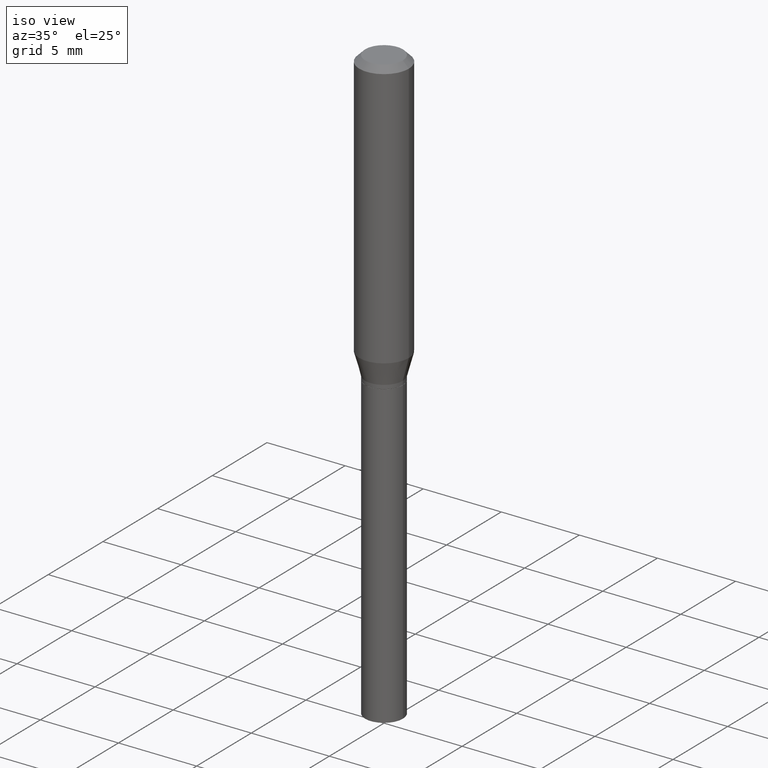
[diagram: clean part render]
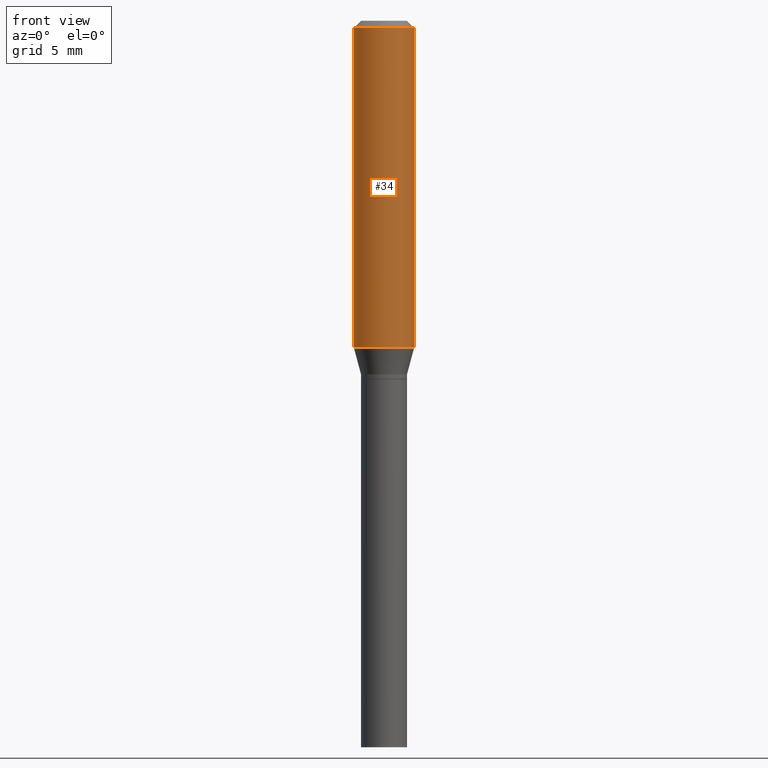
[diagram: tour spotlight — one face highlighted and labeled with its STEP entity id]
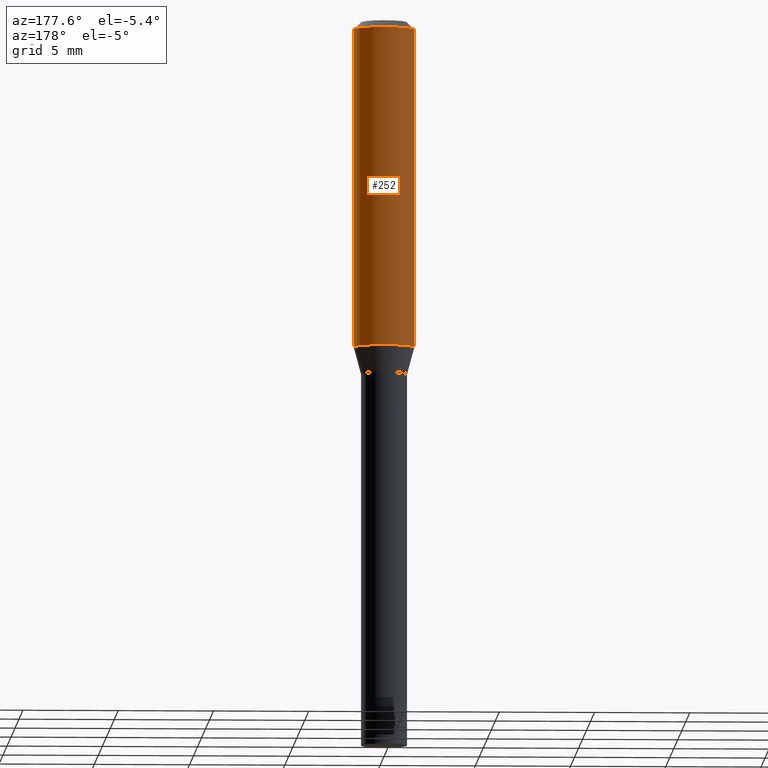
[diagram: tour spotlight — one face highlighted and labeled with its STEP entity id]
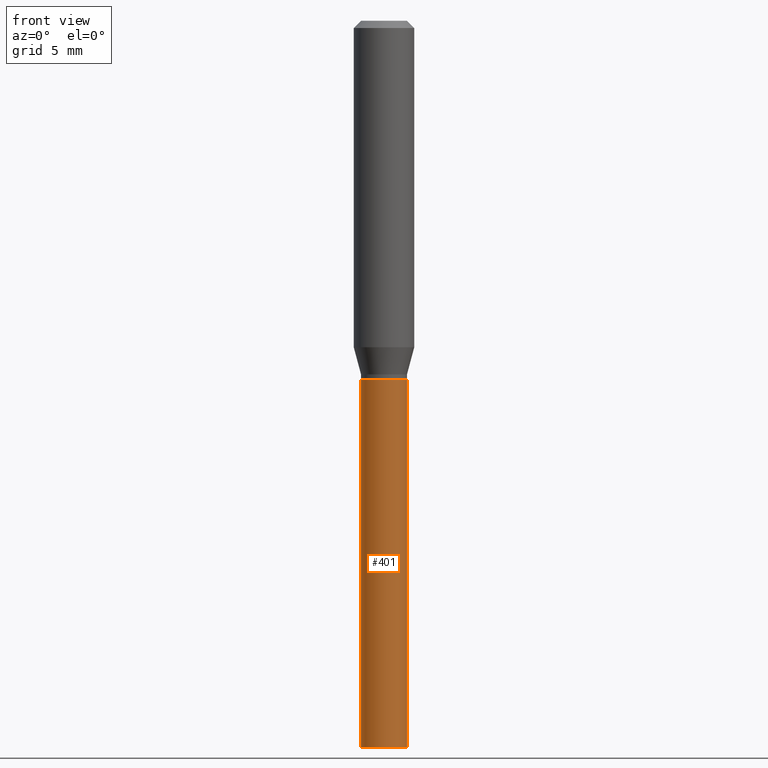
[diagram: tour spotlight — one face highlighted and labeled with its STEP entity id]
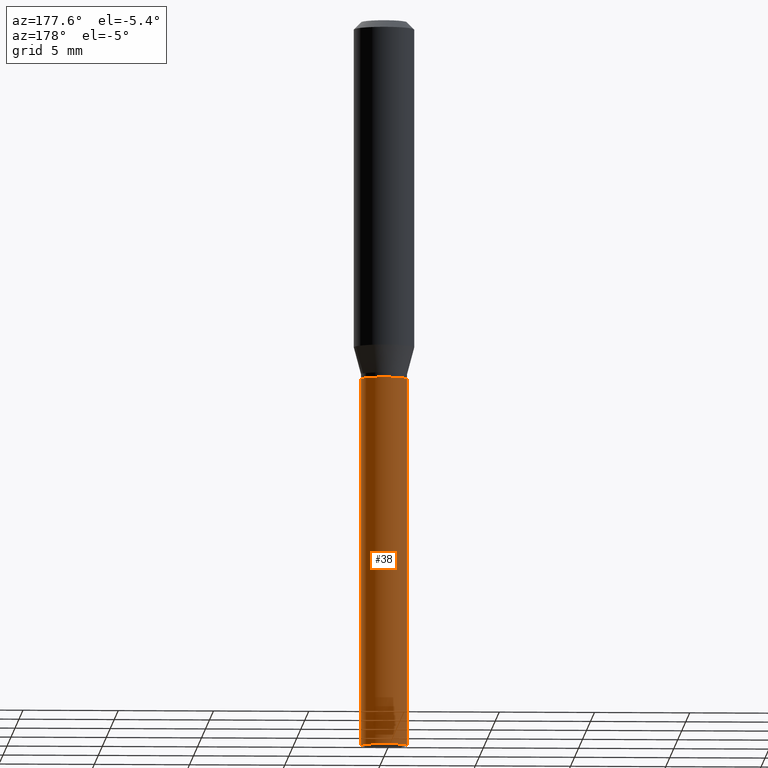
[diagram: tour spotlight — one face highlighted and labeled with its STEP entity id]
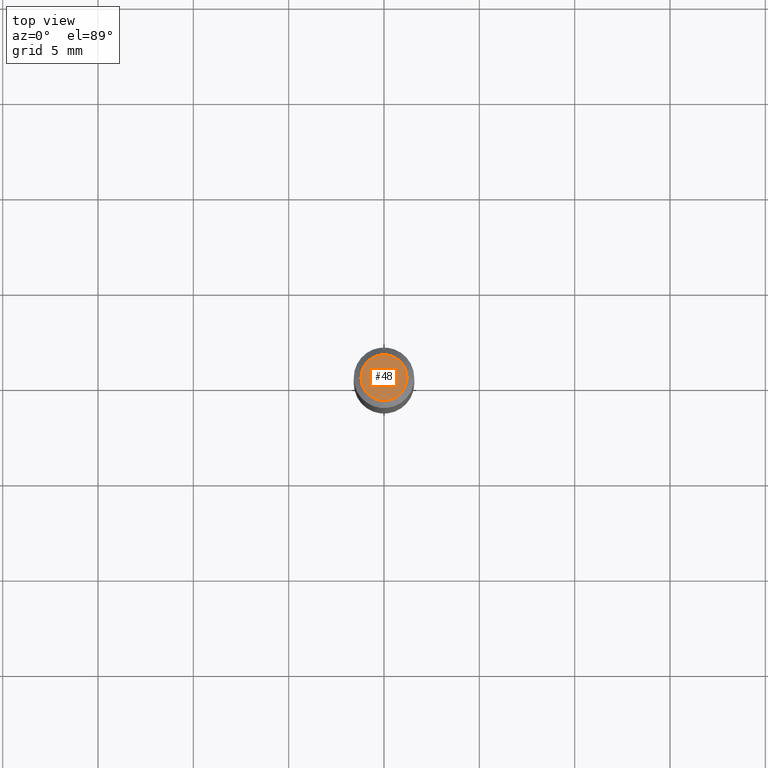
[diagram: tour spotlight — one face highlighted and labeled with its STEP entity id]
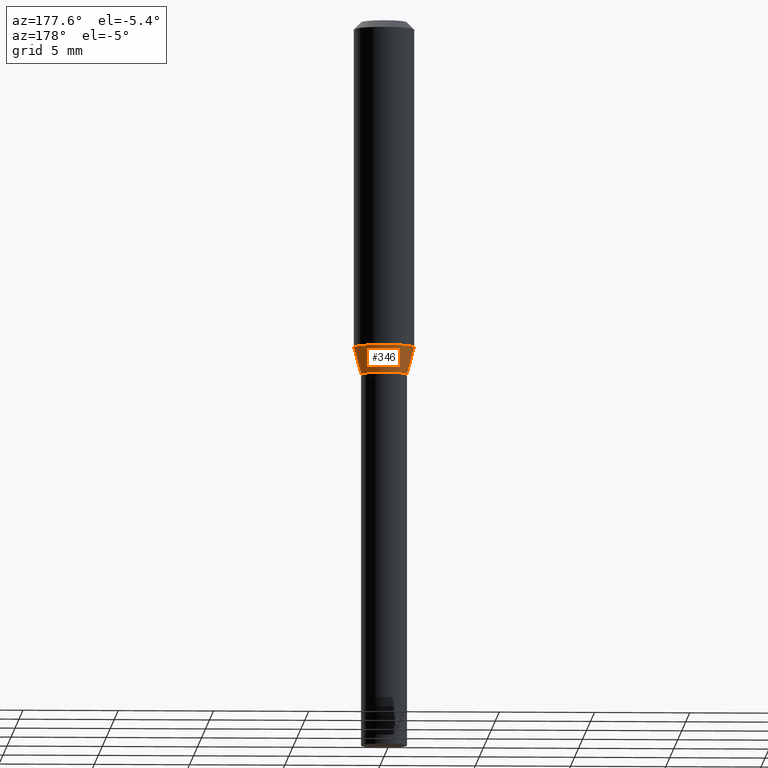
[diagram: tour spotlight — one face highlighted and labeled with its STEP entity id]
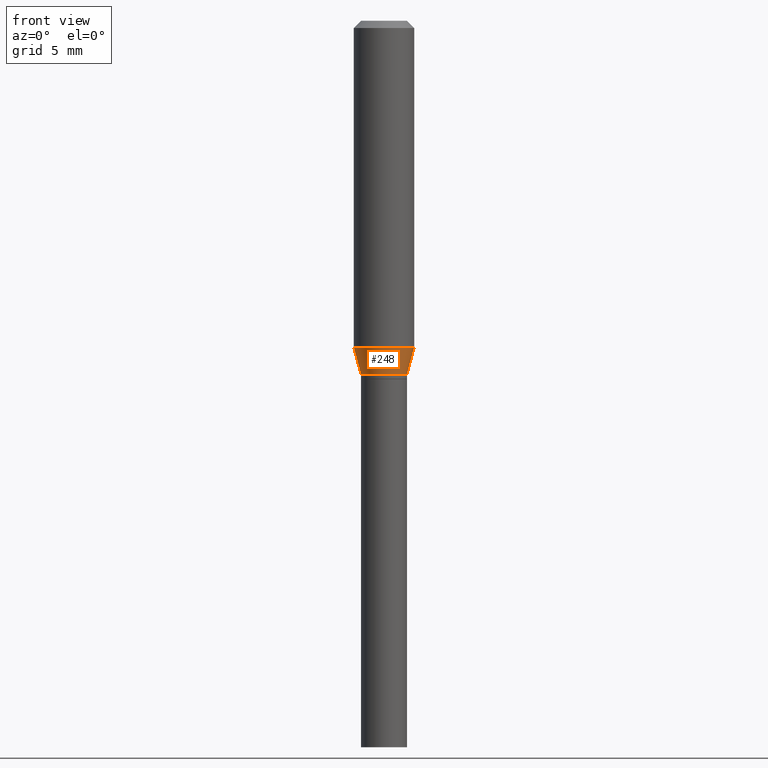
[diagram: tour spotlight — one face highlighted and labeled with its STEP entity id]
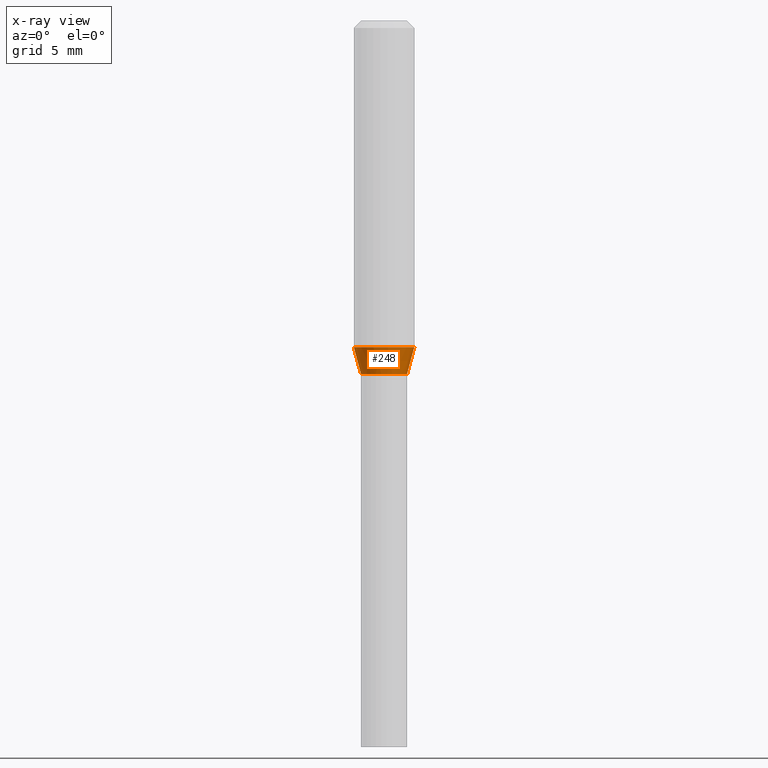
[diagram: x-ray of the same camera — body ghosted, this tour face saturated]
A machine part: a face-by-face anatomy tour. The part has 16 B-rep faces; the first image is the clean iso view, then the 7 largest visible faces are spotlighted one at a time (largest first), each with its STEP entity span.

Face 1 — front view, entity #34. In plain terms, the highlighted cylindrical surface (edge-blend (fillet) strip) has radius 1.5875 mm, axis along (-0, 0, 1).
Definition (entity closure, byte-faithful):
#7 = VECTOR ( 'NONE', #396, 39.37007874015748143 ) ;
#15 = EDGE_CURVE ( 'NONE', #301, #352, #243, .T. ) ;
#20 = VERTEX_POINT ( 'NONE', #185 ) ;
#34 = ADVANCED_FACE ( 'NONE', ( #110 ), #300, .T. ) ;
#81 = CIRCLE ( 'NONE', #386, 0.06250000000000000000 ) ;
#96 = VERTEX_POINT ( 'NONE', #203 ) ;
#97 = VECTOR ( 'NONE', #256, 39.37007874015748143 ) ;
#103 = CARTESIAN_POINT ( 'NONE',  ( -0.06250000000000000000, -1.909236381251816647E-15, -0.6740192378864672262 ) ) ;
#108 = DIRECTION ( 'NONE',  ( 1.000000000000000000, -6.982962677686270655E-15, 0.000000000000000000 ) ) ;
#110 = FACE_OUTER_BOUND ( 'NONE', #409, .T. ) ;
#116 = AXIS2_PLACEMENT_3D ( 'NONE', #392, #433, #439 ) ;
#126 = ORIENTED_EDGE ( 'NONE', *, *, #438, .T. ) ;
#134 = CARTESIAN_POINT ( 'NONE',  ( -0.06250000000000000000, -7.587596957422007521E-16, -0.01499999999999999944 ) ) ;
#148 = AXIS2_PLACEMENT_3D ( 'NONE', #285, #345, #108 ) ;
#185 = CARTESIAN_POINT ( 'NONE',  ( 0.06250000000000000000, -2.789760758457271721E-15, -0.6740192378864672262 ) ) ;
#186 = CARTESIAN_POINT ( 'NONE',  ( 3.668203209277705088E-31, -5.237222008264718399E-17, -0.01499999999999999944 ) ) ;
#188 = DIRECTION ( 'NONE',  ( 1.000000000000000000, -6.982962677686266711E-15, 0.000000000000000000 ) ) ;
#203 = CARTESIAN_POINT ( 'NONE',  ( 0.06250000000000000000, -4.888073874380388472E-16, -0.01499999999999999944 ) ) ;
#220 = LINE ( 'NONE', #356, #97 ) ;
#243 = LINE ( 'NONE', #430, #7 ) ;
#256 = DIRECTION ( 'NONE',  ( -2.445468806185136877E-29, 3.491481338843145188E-15, 1.000000000000000000 ) ) ;
#285 = CARTESIAN_POINT ( 'NONE',  ( 1.648293021020034731E-29, -2.353325591101879657E-15, -0.6740192378864672262 ) ) ;
#297 = DIRECTION ( 'NONE',  ( -2.445468806185136597E-29, 3.491481338843145583E-15, 1.000000000000000000 ) ) ;
#300 = CYLINDRICAL_SURFACE ( 'NONE', #116, 0.06250000000000000000 ) ;
#301 = VERTEX_POINT ( 'NONE', #103 ) ;
#331 = EDGE_CURVE ( 'NONE', #301, #20, #348, .T. ) ;
#345 = DIRECTION ( 'NONE',  ( -2.445468806185136597E-29, 3.491481338843145583E-15, 1.000000000000000000 ) ) ;
#348 = CIRCLE ( 'NONE', #148, 0.06250000000000000000 ) ;
#352 = VERTEX_POINT ( 'NONE', #134 ) ;
#353 = ORIENTED_EDGE ( 'NONE', *, *, #331, .T. ) ;
#356 = CARTESIAN_POINT ( 'NONE',  ( 0.06250000000000000000, -4.364351673553916694E-16, 3.047610484872459871E-30 ) ) ;
#372 = ORIENTED_EDGE ( 'NONE', *, *, #423, .F. ) ;
#386 = AXIS2_PLACEMENT_3D ( 'NONE', #186, #297, #188 ) ;
#392 = CARTESIAN_POINT ( 'NONE',  ( 0.000000000000000000, 0.000000000000000000, 0.000000000000000000 ) ) ;
#396 = DIRECTION ( 'NONE',  ( -2.445468806185136877E-29, 3.491481338843145188E-15, 1.000000000000000000 ) ) ;
#409 = EDGE_LOOP ( 'NONE', ( #421, #353, #126, #372 ) ) ;
#421 = ORIENTED_EDGE ( 'NONE', *, *, #15, .F. ) ;
#423 = EDGE_CURVE ( 'NONE', #352, #96, #81, .T. ) ;
#430 = CARTESIAN_POINT ( 'NONE',  ( -0.06250000000000000000, 4.440892098500626162E-16, -3.074334431409316114E-30 ) ) ;
#433 = DIRECTION ( 'NONE',  ( -2.445468806185136597E-29, 3.491481338843145583E-15, 1.000000000000000000 ) ) ;
#438 = EDGE_CURVE ( 'NONE', #20, #96, #220, .T. ) ;
#439 = DIRECTION ( 'NONE',  ( 1.000000000000000000, -6.982962677686266711E-15, 4.876176775795935793E-29 ) ) ;

Face 2 — auxiliary view, entity #252. In plain terms, the highlighted cylindrical surface (edge-blend (fillet) strip) has radius 1.5875 mm, axis along (-0, 0, 1).
Definition (entity closure, byte-faithful):
#7 = VECTOR ( 'NONE', #396, 39.37007874015748143 ) ;
#12 = DIRECTION ( 'NONE',  ( -2.445468806185136597E-29, 3.491481338843145583E-15, 1.000000000000000000 ) ) ;
#15 = EDGE_CURVE ( 'NONE', #301, #352, #243, .T. ) ;
#17 = ORIENTED_EDGE ( 'NONE', *, *, #411, .T. ) ;
#20 = VERTEX_POINT ( 'NONE', #185 ) ;
#61 = CARTESIAN_POINT ( 'NONE',  ( 3.668203209277705088E-31, -5.237222008264718399E-17, -0.01499999999999999944 ) ) ;
#66 = CYLINDRICAL_SURFACE ( 'NONE', #318, 0.06250000000000000000 ) ;
#93 = EDGE_CURVE ( 'NONE', #96, #352, #295, .T. ) ;
#96 = VERTEX_POINT ( 'NONE', #203 ) ;
#97 = VECTOR ( 'NONE', #256, 39.37007874015748143 ) ;
#103 = CARTESIAN_POINT ( 'NONE',  ( -0.06250000000000000000, -1.909236381251816647E-15, -0.6740192378864672262 ) ) ;
#115 = AXIS2_PLACEMENT_3D ( 'NONE', #216, #144, #391 ) ;
#134 = CARTESIAN_POINT ( 'NONE',  ( -0.06250000000000000000, -7.587596957422007521E-16, -0.01499999999999999944 ) ) ;
#142 = DIRECTION ( 'NONE',  ( -2.445468806185136597E-29, 3.491481338843145583E-15, 1.000000000000000000 ) ) ;
#144 = DIRECTION ( 'NONE',  ( -2.445468806185136597E-29, 3.491481338843145583E-15, 1.000000000000000000 ) ) ;
#175 = ORIENTED_EDGE ( 'NONE', *, *, #438, .F. ) ;
#179 = FACE_OUTER_BOUND ( 'NONE', #239, .T. ) ;
#185 = CARTESIAN_POINT ( 'NONE',  ( 0.06250000000000000000, -2.789760758457271721E-15, -0.6740192378864672262 ) ) ;
#203 = CARTESIAN_POINT ( 'NONE',  ( 0.06250000000000000000, -4.888073874380388472E-16, -0.01499999999999999944 ) ) ;
#209 = CARTESIAN_POINT ( 'NONE',  ( 0.000000000000000000, 0.000000000000000000, 0.000000000000000000 ) ) ;
#216 = CARTESIAN_POINT ( 'NONE',  ( 1.648293021020034731E-29, -2.353325591101879657E-15, -0.6740192378864672262 ) ) ;
#220 = LINE ( 'NONE', #356, #97 ) ;
#227 = ORIENTED_EDGE ( 'NONE', *, *, #15, .T. ) ;
#239 = EDGE_LOOP ( 'NONE', ( #17, #227, #245, #175 ) ) ;
#243 = LINE ( 'NONE', #430, #7 ) ;
#245 = ORIENTED_EDGE ( 'NONE', *, *, #93, .F. ) ;
#252 = ADVANCED_FACE ( 'NONE', ( #179 ), #66, .T. ) ;
#256 = DIRECTION ( 'NONE',  ( -2.445468806185136877E-29, 3.491481338843145188E-15, 1.000000000000000000 ) ) ;
#295 = CIRCLE ( 'NONE', #460, 0.06250000000000000000 ) ;
#301 = VERTEX_POINT ( 'NONE', #103 ) ;
#302 = DIRECTION ( 'NONE',  ( 1.000000000000000000, -6.982962677686266711E-15, 0.000000000000000000 ) ) ;
#318 = AXIS2_PLACEMENT_3D ( 'NONE', #209, #142, #381 ) ;
#352 = VERTEX_POINT ( 'NONE', #134 ) ;
#356 = CARTESIAN_POINT ( 'NONE',  ( 0.06250000000000000000, -4.364351673553916694E-16, 3.047610484872459871E-30 ) ) ;
#379 = CIRCLE ( 'NONE', #115, 0.06250000000000000000 ) ;
#381 = DIRECTION ( 'NONE',  ( 1.000000000000000000, -6.982962677686266711E-15, 4.876176775795935793E-29 ) ) ;
#391 = DIRECTION ( 'NONE',  ( 1.000000000000000000, -6.982962677686270655E-15, 0.000000000000000000 ) ) ;
#396 = DIRECTION ( 'NONE',  ( -2.445468806185136877E-29, 3.491481338843145188E-15, 1.000000000000000000 ) ) ;
#411 = EDGE_CURVE ( 'NONE', #20, #301, #379, .T. ) ;
#430 = CARTESIAN_POINT ( 'NONE',  ( -0.06250000000000000000, 4.440892098500626162E-16, -3.074334431409316114E-30 ) ) ;
#438 = EDGE_CURVE ( 'NONE', #20, #96, #220, .T. ) ;
#460 = AXIS2_PLACEMENT_3D ( 'NONE', #61, #12, #302 ) ;

Face 3 — front view, entity #401. In plain terms, the highlighted cylindrical surface (edge-blend (fillet) strip) has radius 1.2065 mm, axis along (-0, 0, 1).
Definition (entity closure, byte-faithful):
#3 = DIRECTION ( 'NONE',  ( 1.000000000000000000, -6.982962677686267499E-15, 4.876176775795935793E-29 ) ) ;
#63 = VERTEX_POINT ( 'NONE', #408 ) ;
#64 = CARTESIAN_POINT ( 'NONE',  ( 0.04749999999999999362, -3.316907271900976589E-16, 2.316183968503069081E-30 ) ) ;
#71 = CARTESIAN_POINT ( 'NONE',  ( 0.04749999999999999362, -2.915386917934026134E-15, -0.7400000000000002132 ) ) ;
#77 = CIRCLE ( 'NONE', #432, 0.04749999999999999362 ) ;
#78 = CARTESIAN_POINT ( 'NONE',  ( 3.668203209277704895E-29, -5.237222008264718177E-15, -1.500000000000000222 ) ) ;
#106 = CARTESIAN_POINT ( 'NONE',  ( -0.04749999999999999362, -3.572951300018275906E-15, -0.7400000000000002132 ) ) ;
#109 = FACE_OUTER_BOUND ( 'NONE', #234, .T. ) ;
#119 = EDGE_CURVE ( 'NONE', #63, #344, #265, .T. ) ;
#124 = ORIENTED_EDGE ( 'NONE', *, *, #166, .T. ) ;
#131 = CARTESIAN_POINT ( 'NONE',  ( -0.04749999999999999362, 3.375077994860475429E-16, -2.336494167871079910E-30 ) ) ;
#145 = CARTESIAN_POINT ( 'NONE',  ( 0.04749999999999999362, -5.568912735454815688E-15, -1.500000000000000222 ) ) ;
#147 = DIRECTION ( 'NONE',  ( -2.445468806185136597E-29, 3.491481338843145583E-15, 1.000000000000000000 ) ) ;
#166 = EDGE_CURVE ( 'NONE', #337, #275, #217, .T. ) ;
#177 = DIRECTION ( 'NONE',  ( 1.000000000000000000, -6.982962677686273021E-15, 0.000000000000000000 ) ) ;
#178 = ORIENTED_EDGE ( 'NONE', *, *, #119, .F. ) ;
#180 = CARTESIAN_POINT ( 'NONE',  ( 0.000000000000000000, 0.000000000000000000, 0.000000000000000000 ) ) ;
#184 = DIRECTION ( 'NONE',  ( -2.445468806185136597E-29, 3.491481338843145583E-15, 1.000000000000000000 ) ) ;
#217 = LINE ( 'NONE', #64, #349 ) ;
#224 = DIRECTION ( 'NONE',  ( 1.000000000000000000, -6.982962677686261977E-15, 0.000000000000000000 ) ) ;
#226 = AXIS2_PLACEMENT_3D ( 'NONE', #78, #147, #224 ) ;
#234 = EDGE_LOOP ( 'NONE', ( #178, #406, #124, #416 ) ) ;
#244 = CARTESIAN_POINT ( 'NONE',  ( 1.809646916577001463E-29, -2.583696190743928228E-15, -0.7400000000000002132 ) ) ;
#259 = CYLINDRICAL_SURFACE ( 'NONE', #299, 0.04749999999999999362 ) ;
#265 = LINE ( 'NONE', #131, #266 ) ;
#266 = VECTOR ( 'NONE', #304, 39.37007874015748143 ) ;
#275 = VERTEX_POINT ( 'NONE', #71 ) ;
#278 = CIRCLE ( 'NONE', #226, 0.04749999999999999362 ) ;
#299 = AXIS2_PLACEMENT_3D ( 'NONE', #180, #184, #3 ) ;
#304 = DIRECTION ( 'NONE',  ( -2.445468806185136877E-29, 3.491481338843145188E-15, 1.000000000000000000 ) ) ;
#317 = DIRECTION ( 'NONE',  ( -2.445468806185136597E-29, 3.491481338843145583E-15, 1.000000000000000000 ) ) ;
#321 = EDGE_CURVE ( 'NONE', #344, #275, #77, .T. ) ;
#337 = VERTEX_POINT ( 'NONE', #145 ) ;
#344 = VERTEX_POINT ( 'NONE', #106 ) ;
#349 = VECTOR ( 'NONE', #461, 39.37007874015748143 ) ;
#401 = ADVANCED_FACE ( 'NONE', ( #109 ), #259, .T. ) ;
#403 = EDGE_CURVE ( 'NONE', #63, #337, #278, .T. ) ;
#406 = ORIENTED_EDGE ( 'NONE', *, *, #403, .T. ) ;
#408 = CARTESIAN_POINT ( 'NONE',  ( -0.04749999999999999362, -3.572951300018275906E-15, -1.500000000000000222 ) ) ;
#416 = ORIENTED_EDGE ( 'NONE', *, *, #321, .F. ) ;
#432 = AXIS2_PLACEMENT_3D ( 'NONE', #244, #317, #177 ) ;
#461 = DIRECTION ( 'NONE',  ( -2.445468806185136877E-29, 3.491481338843145188E-15, 1.000000000000000000 ) ) ;

Face 4 — auxiliary view, entity #38. In plain terms, the highlighted cylindrical surface (edge-blend (fillet) strip) has radius 1.2065 mm, axis along (-0, 0, 1).
Definition (entity closure, byte-faithful):
#22 = EDGE_CURVE ( 'NONE', #337, #63, #40, .T. ) ;
#38 = ADVANCED_FACE ( 'NONE', ( #404 ), #47, .T. ) ;
#40 = CIRCLE ( 'NONE', #104, 0.04749999999999999362 ) ;
#47 = CYLINDRICAL_SURFACE ( 'NONE', #211, 0.04749999999999999362 ) ;
#55 = EDGE_LOOP ( 'NONE', ( #269, #453, #107, #57 ) ) ;
#57 = ORIENTED_EDGE ( 'NONE', *, *, #166, .F. ) ;
#63 = VERTEX_POINT ( 'NONE', #408 ) ;
#64 = CARTESIAN_POINT ( 'NONE',  ( 0.04749999999999999362, -3.316907271900976589E-16, 2.316183968503069081E-30 ) ) ;
#71 = CARTESIAN_POINT ( 'NONE',  ( 0.04749999999999999362, -2.915386917934026134E-15, -0.7400000000000002132 ) ) ;
#104 = AXIS2_PLACEMENT_3D ( 'NONE', #287, #427, #291 ) ;
#106 = CARTESIAN_POINT ( 'NONE',  ( -0.04749999999999999362, -3.572951300018275906E-15, -0.7400000000000002132 ) ) ;
#107 = ORIENTED_EDGE ( 'NONE', *, *, #357, .F. ) ;
#117 = CARTESIAN_POINT ( 'NONE',  ( 0.000000000000000000, 0.000000000000000000, 0.000000000000000000 ) ) ;
#119 = EDGE_CURVE ( 'NONE', #63, #344, #265, .T. ) ;
#122 = DIRECTION ( 'NONE',  ( 1.000000000000000000, -6.982962677686267499E-15, 4.876176775795935793E-29 ) ) ;
#131 = CARTESIAN_POINT ( 'NONE',  ( -0.04749999999999999362, 3.375077994860475429E-16, -2.336494167871079910E-30 ) ) ;
#145 = CARTESIAN_POINT ( 'NONE',  ( 0.04749999999999999362, -5.568912735454815688E-15, -1.500000000000000222 ) ) ;
#165 = DIRECTION ( 'NONE',  ( -2.445468806185136597E-29, 3.491481338843145583E-15, 1.000000000000000000 ) ) ;
#166 = EDGE_CURVE ( 'NONE', #337, #275, #217, .T. ) ;
#174 = CARTESIAN_POINT ( 'NONE',  ( 1.809646916577001463E-29, -2.583696190743928228E-15, -0.7400000000000002132 ) ) ;
#190 = AXIS2_PLACEMENT_3D ( 'NONE', #174, #165, #311 ) ;
#211 = AXIS2_PLACEMENT_3D ( 'NONE', #117, #360, #122 ) ;
#217 = LINE ( 'NONE', #64, #349 ) ;
#265 = LINE ( 'NONE', #131, #266 ) ;
#266 = VECTOR ( 'NONE', #304, 39.37007874015748143 ) ;
#269 = ORIENTED_EDGE ( 'NONE', *, *, #22, .T. ) ;
#275 = VERTEX_POINT ( 'NONE', #71 ) ;
#287 = CARTESIAN_POINT ( 'NONE',  ( 3.668203209277704895E-29, -5.237222008264718177E-15, -1.500000000000000222 ) ) ;
#291 = DIRECTION ( 'NONE',  ( 1.000000000000000000, -6.982962677686261977E-15, 0.000000000000000000 ) ) ;
#304 = DIRECTION ( 'NONE',  ( -2.445468806185136877E-29, 3.491481338843145188E-15, 1.000000000000000000 ) ) ;
#311 = DIRECTION ( 'NONE',  ( 1.000000000000000000, -6.982962677686273021E-15, 0.000000000000000000 ) ) ;
#337 = VERTEX_POINT ( 'NONE', #145 ) ;
#344 = VERTEX_POINT ( 'NONE', #106 ) ;
#349 = VECTOR ( 'NONE', #461, 39.37007874015748143 ) ;
#357 = EDGE_CURVE ( 'NONE', #275, #344, #466, .T. ) ;
#360 = DIRECTION ( 'NONE',  ( -2.445468806185136597E-29, 3.491481338843145583E-15, 1.000000000000000000 ) ) ;
#404 = FACE_OUTER_BOUND ( 'NONE', #55, .T. ) ;
#408 = CARTESIAN_POINT ( 'NONE',  ( -0.04749999999999999362, -3.572951300018275906E-15, -1.500000000000000222 ) ) ;
#427 = DIRECTION ( 'NONE',  ( -2.445468806185136597E-29, 3.491481338843145583E-15, 1.000000000000000000 ) ) ;
#453 = ORIENTED_EDGE ( 'NONE', *, *, #119, .T. ) ;
#461 = DIRECTION ( 'NONE',  ( -2.445468806185136877E-29, 3.491481338843145188E-15, 1.000000000000000000 ) ) ;
#466 = CIRCLE ( 'NONE', #190, 0.04749999999999999362 ) ;

Face 5 — top view, entity #48. In plain terms, the highlighted planar face has unit normal (0, -0, -1).
Definition (entity closure, byte-faithful):
#48 = ADVANCED_FACE ( 'NONE', ( #73 ), #84, .F. ) ;
#73 = FACE_OUTER_BOUND ( 'NONE', #167, .T. ) ;
#84 = PLANE ( 'NONE',  #398 ) ;
#100 = DIRECTION ( 'NONE',  ( -2.445468806185136597E-29, 3.491481338843145583E-15, 1.000000000000000000 ) ) ;
#137 = CIRCLE ( 'NONE', #446, 0.04749999999999999362 ) ;
#139 = CARTESIAN_POINT ( 'NONE',  ( -1.926388536342670348E-45, 2.750372284034196662E-31, 7.877379304411503798E-17 ) ) ;
#150 = CIRCLE ( 'NONE', #415, 0.04749999999999999362 ) ;
#167 = EDGE_LOOP ( 'NONE', ( #242, #339 ) ) ;
#181 = EDGE_CURVE ( 'NONE', #382, #451, #137, .T. ) ;
#215 = CARTESIAN_POINT ( 'NONE',  ( -1.926388536342670348E-45, 2.750372284034196662E-31, 7.877379304411503798E-17 ) ) ;
#229 = CARTESIAN_POINT ( 'NONE',  ( 3.316907271900976096E-16, 0.04749999999999999362, -1.264584670729918775E-16 ) ) ;
#235 = EDGE_CURVE ( 'NONE', #451, #382, #150, .T. ) ;
#242 = ORIENTED_EDGE ( 'NONE', *, *, #181, .T. ) ;
#282 = DIRECTION ( 'NONE',  ( 1.000000000000000000, -6.982962677686267499E-15, 4.884662768193073002E-29 ) ) ;
#328 = CARTESIAN_POINT ( 'NONE',  ( -0.04749999999999999362, 3.578768372314211492E-16, 7.877379304411263442E-17 ) ) ;
#339 = ORIENTED_EDGE ( 'NONE', *, *, #235, .T. ) ;
#354 = DIRECTION ( 'NONE',  ( 1.000000000000000000, -6.982962677686267499E-15, 4.884662768193073002E-29 ) ) ;
#382 = VERTEX_POINT ( 'NONE', #328 ) ;
#387 = DIRECTION ( 'NONE',  ( -2.445468806185136597E-29, 3.491481338843145583E-15, 1.000000000000000000 ) ) ;
#388 = DIRECTION ( 'NONE',  ( -1.000000000000000000, 6.982962677686265922E-15, -4.876176775795935793E-29 ) ) ;
#389 = DIRECTION ( 'NONE',  ( 2.438088387897960049E-29, -3.491481338843145188E-15, -1.000000000000000000 ) ) ;
#398 = AXIS2_PLACEMENT_3D ( 'NONE', #229, #389, #388 ) ;
#415 = AXIS2_PLACEMENT_3D ( 'NONE', #215, #100, #282 ) ;
#429 = CARTESIAN_POINT ( 'NONE',  ( 0.04749999999999999362, -4.035134999187576651E-16, 7.877379304411762643E-17 ) ) ;
#446 = AXIS2_PLACEMENT_3D ( 'NONE', #139, #387, #354 ) ;
#451 = VERTEX_POINT ( 'NONE', #429 ) ;

Face 6 — auxiliary view, entity #346. In plain terms, the highlighted conical surface has half-angle 15 deg.
Definition (entity closure, byte-faithful):
#2 = DIRECTION ( 'NONE',  ( -0.2588190451025207950, 5.211531920934546309E-15, 0.9659258262890682012 ) ) ;
#20 = VERTEX_POINT ( 'NONE', #185 ) ;
#27 = CARTESIAN_POINT ( 'NONE',  ( 1.785192228515149917E-29, -2.548781377355496973E-15, -0.7300000000000000933 ) ) ;
#52 = EDGE_CURVE ( 'NONE', #455, #20, #198, .T. ) ;
#58 = DIRECTION ( 'NONE',  ( 0.2588190451025207950, 1.565188264969625912E-15, 0.9659258262890682012 ) ) ;
#59 = DIRECTION ( 'NONE',  ( -2.445468806185136597E-29, 3.491481338843145583E-15, 1.000000000000000000 ) ) ;
#68 = VECTOR ( 'NONE', #2, 39.37007874015748854 ) ;
#95 = DIRECTION ( 'NONE',  ( 1.000000000000000000, -6.982962677686270655E-15, 0.000000000000000000 ) ) ;
#103 = CARTESIAN_POINT ( 'NONE',  ( -0.06250000000000000000, -1.909236381251816647E-15, -0.6740192378864672262 ) ) ;
#112 = CARTESIAN_POINT ( 'NONE',  ( 0.04750000000000007688, -2.880472104545595273E-15, -0.7300000000000000933 ) ) ;
#115 = AXIS2_PLACEMENT_3D ( 'NONE', #216, #144, #391 ) ;
#144 = DIRECTION ( 'NONE',  ( -2.445468806185136597E-29, 3.491481338843145583E-15, 1.000000000000000000 ) ) ;
#170 = EDGE_CURVE ( 'NONE', #455, #208, #232, .T. ) ;
#172 = AXIS2_PLACEMENT_3D ( 'NONE', #27, #59, #95 ) ;
#182 = DIRECTION ( 'NONE',  ( -2.445468806185136597E-29, 3.491481338843145583E-15, 1.000000000000000000 ) ) ;
#185 = CARTESIAN_POINT ( 'NONE',  ( 0.06250000000000000000, -2.789760758457271721E-15, -0.6740192378864672262 ) ) ;
#189 = AXIS2_PLACEMENT_3D ( 'NONE', #288, #182, #325 ) ;
#194 = EDGE_LOOP ( 'NONE', ( #263, #454, #332, #405 ) ) ;
#198 = LINE ( 'NONE', #377, #236 ) ;
#208 = VERTEX_POINT ( 'NONE', #281 ) ;
#210 = LINE ( 'NONE', #384, #68 ) ;
#216 = CARTESIAN_POINT ( 'NONE',  ( 1.648293021020034731E-29, -2.353325591101879657E-15, -0.6740192378864672262 ) ) ;
#232 = CIRCLE ( 'NONE', #189, 0.04750000000000007688 ) ;
#236 = VECTOR ( 'NONE', #58, 39.37007874015748854 ) ;
#241 = EDGE_CURVE ( 'NONE', #208, #301, #210, .T. ) ;
#263 = ORIENTED_EDGE ( 'NONE', *, *, #170, .T. ) ;
#274 = FACE_OUTER_BOUND ( 'NONE', #194, .T. ) ;
#281 = CARTESIAN_POINT ( 'NONE',  ( -0.04750000000000007688, -2.060254979560632669E-15, -0.7300000000000000933 ) ) ;
#288 = CARTESIAN_POINT ( 'NONE',  ( 1.785192228515149917E-29, -2.548781377355496973E-15, -0.7300000000000000933 ) ) ;
#301 = VERTEX_POINT ( 'NONE', #103 ) ;
#325 = DIRECTION ( 'NONE',  ( 1.000000000000000000, -6.982962677686270655E-15, 0.000000000000000000 ) ) ;
#332 = ORIENTED_EDGE ( 'NONE', *, *, #411, .F. ) ;
#346 = ADVANCED_FACE ( 'NONE', ( #274 ), #422, .T. ) ;
#377 = CARTESIAN_POINT ( 'NONE',  ( 0.04750000000000007688, -2.880472104545595273E-15, -0.7300000000000000933 ) ) ;
#379 = CIRCLE ( 'NONE', #115, 0.06250000000000000000 ) ;
#384 = CARTESIAN_POINT ( 'NONE',  ( -0.04750000000000007688, -2.211273577869448691E-15, -0.7300000000000000933 ) ) ;
#391 = DIRECTION ( 'NONE',  ( 1.000000000000000000, -6.982962677686270655E-15, 0.000000000000000000 ) ) ;
#405 = ORIENTED_EDGE ( 'NONE', *, *, #52, .F. ) ;
#411 = EDGE_CURVE ( 'NONE', #20, #301, #379, .T. ) ;
#422 = CONICAL_SURFACE ( 'NONE', #172, 0.04750000000000007688, 0.2617993877991495189 ) ;
#454 = ORIENTED_EDGE ( 'NONE', *, *, #241, .T. ) ;
#455 = VERTEX_POINT ( 'NONE', #112 ) ;

Face 7 — front view, entity #248. An x-ray twin of the same camera follows (body ghosted, this face saturated) — the face is partly hidden behind the body. In plain terms, the highlighted conical surface has half-angle 15 deg.
Definition (entity closure, byte-faithful):
#2 = DIRECTION ( 'NONE',  ( -0.2588190451025207950, 5.211531920934546309E-15, 0.9659258262890682012 ) ) ;
#20 = VERTEX_POINT ( 'NONE', #185 ) ;
#50 = CIRCLE ( 'NONE', #458, 0.04750000000000007688 ) ;
#52 = EDGE_CURVE ( 'NONE', #455, #20, #198, .T. ) ;
#58 = DIRECTION ( 'NONE',  ( 0.2588190451025207950, 1.565188264969625912E-15, 0.9659258262890682012 ) ) ;
#68 = VECTOR ( 'NONE', #2, 39.37007874015748854 ) ;
#70 = DIRECTION ( 'NONE',  ( -2.445468806185136597E-29, 3.491481338843145583E-15, 1.000000000000000000 ) ) ;
#85 = ORIENTED_EDGE ( 'NONE', *, *, #52, .T. ) ;
#99 = DIRECTION ( 'NONE',  ( 1.000000000000000000, -6.982962677686270655E-15, 0.000000000000000000 ) ) ;
#103 = CARTESIAN_POINT ( 'NONE',  ( -0.06250000000000000000, -1.909236381251816647E-15, -0.6740192378864672262 ) ) ;
#108 = DIRECTION ( 'NONE',  ( 1.000000000000000000, -6.982962677686270655E-15, 0.000000000000000000 ) ) ;
#112 = CARTESIAN_POINT ( 'NONE',  ( 0.04750000000000007688, -2.880472104545595273E-15, -0.7300000000000000933 ) ) ;
#133 = ORIENTED_EDGE ( 'NONE', *, *, #331, .F. ) ;
#136 = FACE_OUTER_BOUND ( 'NONE', #201, .T. ) ;
#143 = CARTESIAN_POINT ( 'NONE',  ( 1.785192228515149917E-29, -2.548781377355496973E-15, -0.7300000000000000933 ) ) ;
#148 = AXIS2_PLACEMENT_3D ( 'NONE', #285, #345, #108 ) ;
#173 = DIRECTION ( 'NONE',  ( -2.445468806185136597E-29, 3.491481338843145583E-15, 1.000000000000000000 ) ) ;
#185 = CARTESIAN_POINT ( 'NONE',  ( 0.06250000000000000000, -2.789760758457271721E-15, -0.6740192378864672262 ) ) ;
#187 = EDGE_CURVE ( 'NONE', #208, #455, #50, .T. ) ;
#196 = ORIENTED_EDGE ( 'NONE', *, *, #241, .F. ) ;
#198 = LINE ( 'NONE', #377, #236 ) ;
#201 = EDGE_LOOP ( 'NONE', ( #196, #445, #85, #133 ) ) ;
#208 = VERTEX_POINT ( 'NONE', #281 ) ;
#210 = LINE ( 'NONE', #384, #68 ) ;
#236 = VECTOR ( 'NONE', #58, 39.37007874015748854 ) ;
#241 = EDGE_CURVE ( 'NONE', #208, #301, #210, .T. ) ;
#248 = ADVANCED_FACE ( 'NONE', ( #136 ), #308, .T. ) ;
#279 = AXIS2_PLACEMENT_3D ( 'NONE', #143, #173, #425 ) ;
#281 = CARTESIAN_POINT ( 'NONE',  ( -0.04750000000000007688, -2.060254979560632669E-15, -0.7300000000000000933 ) ) ;
#285 = CARTESIAN_POINT ( 'NONE',  ( 1.648293021020034731E-29, -2.353325591101879657E-15, -0.6740192378864672262 ) ) ;
#301 = VERTEX_POINT ( 'NONE', #103 ) ;
#308 = CONICAL_SURFACE ( 'NONE', #279, 0.04750000000000007688, 0.2617993877991495189 ) ;
#331 = EDGE_CURVE ( 'NONE', #301, #20, #348, .T. ) ;
#345 = DIRECTION ( 'NONE',  ( -2.445468806185136597E-29, 3.491481338843145583E-15, 1.000000000000000000 ) ) ;
#348 = CIRCLE ( 'NONE', #148, 0.06250000000000000000 ) ;
#377 = CARTESIAN_POINT ( 'NONE',  ( 0.04750000000000007688, -2.880472104545595273E-15, -0.7300000000000000933 ) ) ;
#384 = CARTESIAN_POINT ( 'NONE',  ( -0.04750000000000007688, -2.211273577869448691E-15, -0.7300000000000000933 ) ) ;
#417 = CARTESIAN_POINT ( 'NONE',  ( 1.785192228515149917E-29, -2.548781377355496973E-15, -0.7300000000000000933 ) ) ;
#425 = DIRECTION ( 'NONE',  ( 1.000000000000000000, -6.982962677686270655E-15, 0.000000000000000000 ) ) ;
#445 = ORIENTED_EDGE ( 'NONE', *, *, #187, .T. ) ;
#455 = VERTEX_POINT ( 'NONE', #112 ) ;
#458 = AXIS2_PLACEMENT_3D ( 'NONE', #417, #70, #99 ) ;